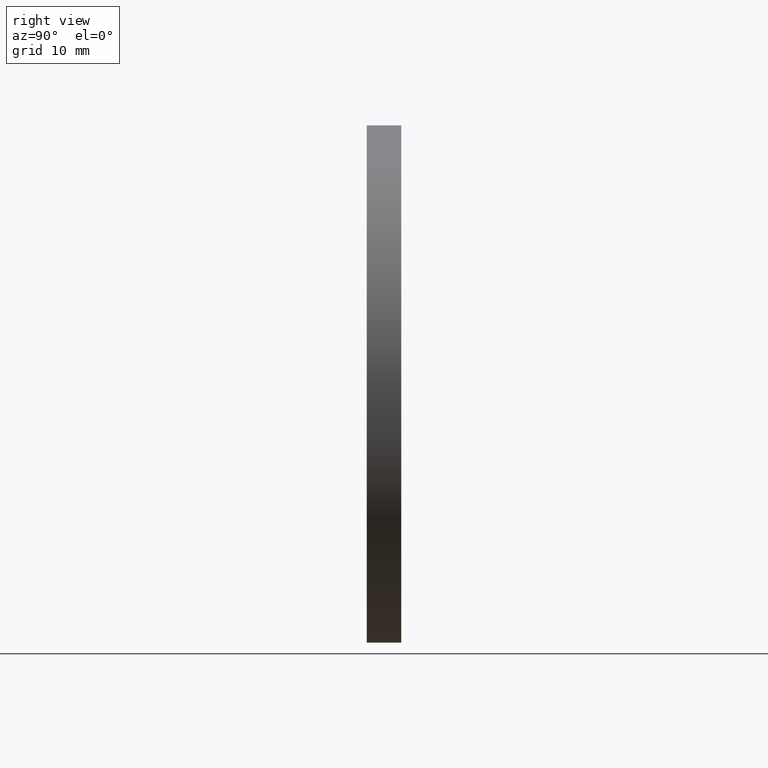
[diagram: clean part render]
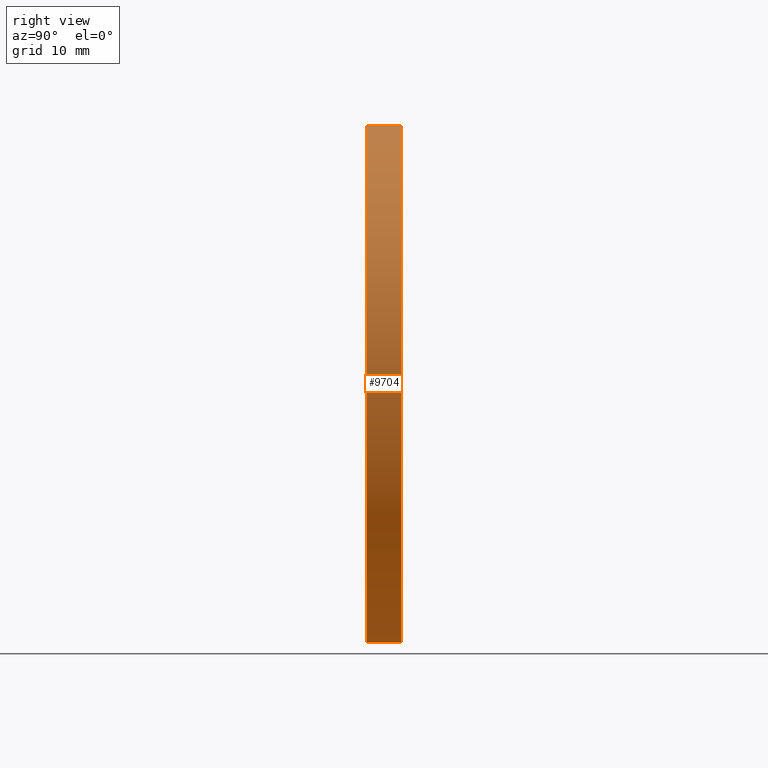
[diagram: same view with one face highlighted and labeled with its STEP entity id]
A machine part, right view. The second image highlights one B-rep face of the part: STEP entity #9704.
In plain terms, the highlighted cylindrical surface (partial cylindrical patch) has radius 30 mm, axis along (-0, -1, -0).
Its self-contained STEP definition (entity closure, byte-faithful):
#19 = CYLINDRICAL_SURFACE ( 'NONE', #2535, 30.00000000000000000 ) ;
#42 = CARTESIAN_POINT ( 'NONE',  ( 0.000000000000000000, -2.000000000000000000, 0.000000000000000000 ) ) ;
#144 = VERTEX_POINT ( 'NONE', #7774 ) ;
#425 = DIRECTION ( 'NONE',  ( -0.000000000000000000, -1.000000000000000000, -0.000000000000000000 ) ) ;
#541 = CARTESIAN_POINT ( 'NONE',  ( 0.000000000000000000, 2.000000000000000000, 0.000000000000000000 ) ) ;
#558 = VERTEX_POINT ( 'NONE', #11122 ) ;
#659 = EDGE_CURVE ( 'NONE', #144, #4172, #10434, .T. ) ;
#1531 = EDGE_CURVE ( 'NONE', #144, #558, #6512, .T. ) ;
#1607 = AXIS2_PLACEMENT_3D ( 'NONE', #4561, #9390, #4601 ) ;
#1650 = VERTEX_POINT ( 'NONE', #8312 ) ;
#2410 = DIRECTION ( 'NONE',  ( -0.000000000000000000, -1.000000000000000000, -0.000000000000000000 ) ) ;
#2535 = AXIS2_PLACEMENT_3D ( 'NONE', #541, #2410, #11973 ) ;
#3409 = CARTESIAN_POINT ( 'NONE',  ( 3.673940397442059178E-15, 2.000000000000000000, 30.00000000000000000 ) ) ;
#3431 = ORIENTED_EDGE ( 'NONE', *, *, #10742, .F. ) ;
#4172 = VERTEX_POINT ( 'NONE', #10856 ) ;
#4561 = CARTESIAN_POINT ( 'NONE',  ( 0.000000000000000000, 2.000000000000000000, 0.000000000000000000 ) ) ;
#4601 = DIRECTION ( 'NONE',  ( 0.000000000000000000, 0.000000000000000000, 1.000000000000000000 ) ) ;
#4608 = EDGE_LOOP ( 'NONE', ( #8869, #11894, #10919, #3431 ) ) ;
#4700 = CARTESIAN_POINT ( 'NONE',  ( 0.000000000000000000, 2.000000000000000000, -30.00000000000000000 ) ) ;
#6011 = CIRCLE ( 'NONE', #6264, 30.00000000000000000 ) ;
#6264 = AXIS2_PLACEMENT_3D ( 'NONE', #42, #11610, #8771 ) ;
#6512 = LINE ( 'NONE', #3409, #12213 ) ;
#7774 = CARTESIAN_POINT ( 'NONE',  ( 3.673940397442059178E-15, 2.000000000000000000, 30.00000000000000000 ) ) ;
#8312 = CARTESIAN_POINT ( 'NONE',  ( 0.000000000000000000, -2.000000000000000000, -30.00000000000000000 ) ) ;
#8718 = VECTOR ( 'NONE', #10481, 1000.000000000000000 ) ;
#8771 = DIRECTION ( 'NONE',  ( 0.000000000000000000, 0.000000000000000000, 1.000000000000000000 ) ) ;
#8869 = ORIENTED_EDGE ( 'NONE', *, *, #659, .F. ) ;
#9301 = LINE ( 'NONE', #4700, #8718 ) ;
#9390 = DIRECTION ( 'NONE',  ( 0.000000000000000000, 1.000000000000000000, 0.000000000000000000 ) ) ;
#9704 = ADVANCED_FACE ( 'NONE', ( #11126 ), #19, .T. ) ;
#10434 = CIRCLE ( 'NONE', #1607, 30.00000000000000000 ) ;
#10481 = DIRECTION ( 'NONE',  ( -0.000000000000000000, -1.000000000000000000, -0.000000000000000000 ) ) ;
#10742 = EDGE_CURVE ( 'NONE', #4172, #1650, #9301, .T. ) ;
#10856 = CARTESIAN_POINT ( 'NONE',  ( 0.000000000000000000, 2.000000000000000000, -30.00000000000000000 ) ) ;
#10919 = ORIENTED_EDGE ( 'NONE', *, *, #11925, .T. ) ;
#11122 = CARTESIAN_POINT ( 'NONE',  ( 3.673940397442059178E-15, -2.000000000000000000, 30.00000000000000000 ) ) ;
#11126 = FACE_OUTER_BOUND ( 'NONE', #4608, .T. ) ;
#11610 = DIRECTION ( 'NONE',  ( 0.000000000000000000, 1.000000000000000000, 0.000000000000000000 ) ) ;
#11894 = ORIENTED_EDGE ( 'NONE', *, *, #1531, .T. ) ;
#11925 = EDGE_CURVE ( 'NONE', #558, #1650, #6011, .T. ) ;
#11973 = DIRECTION ( 'NONE',  ( 0.000000000000000000, 0.000000000000000000, -1.000000000000000000 ) ) ;
#12213 = VECTOR ( 'NONE', #425, 1000.000000000000000 ) ;